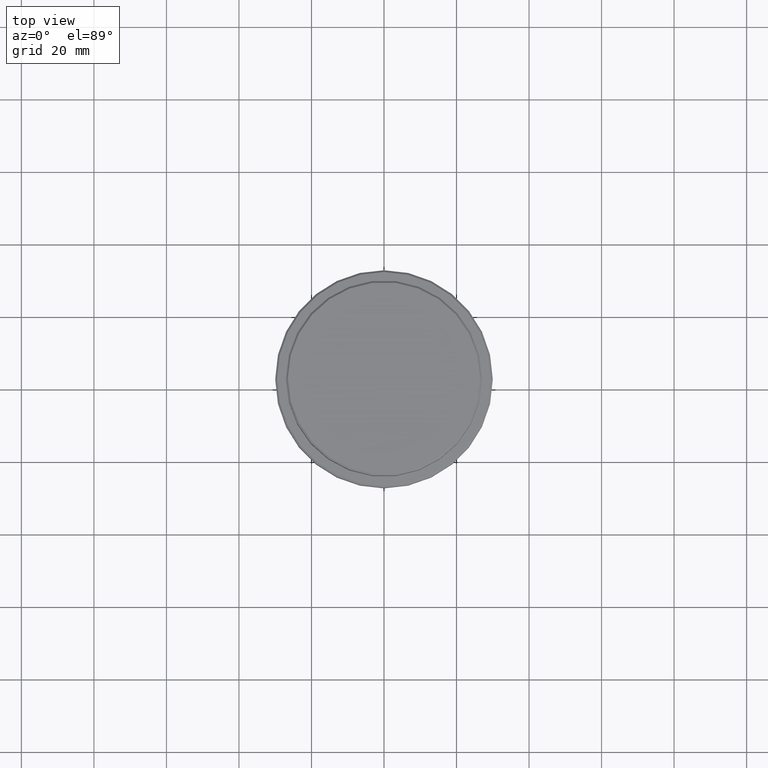
[diagram: clean part render]
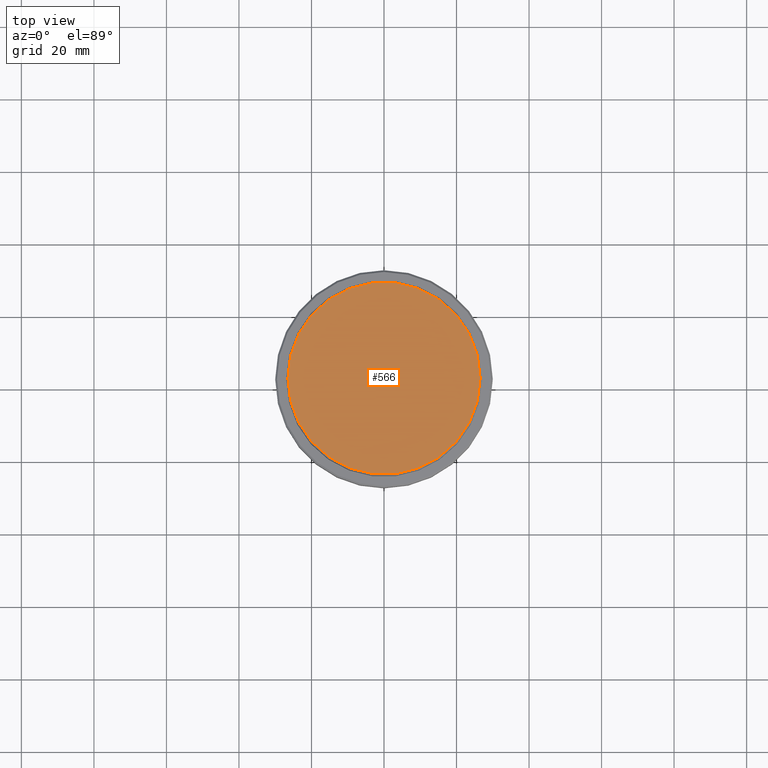
[diagram: same view with one face highlighted and labeled with its STEP entity id]
A machine part, top view. The second image highlights one B-rep face of the part: STEP entity #566.
In plain terms, the highlighted planar face has unit normal (0, -0, 1).
Its self-contained STEP definition (entity closure, byte-faithful):
#5 = FACE_OUTER_BOUND ( 'NONE', #1179, .T. ) ;
#134 = DIRECTION ( 'NONE',  ( 0.000000000000000000, -0.000000000000000000, 1.000000000000000000 ) ) ;
#223 = CIRCLE ( 'NONE', #1031, 26.50000000000002487 ) ;
#235 = CARTESIAN_POINT ( 'NONE',  ( 0.000000000000000000, 0.000000000000000000, 0.000000000000000000 ) ) ;
#254 = CARTESIAN_POINT ( 'NONE',  ( 26.50000000000002487, 3.275930187719171130E-15, 0.000000000000000000 ) ) ;
#353 = AXIS2_PLACEMENT_3D ( 'NONE', #1252, #948, #918 ) ;
#405 = VERTEX_POINT ( 'NONE', #987 ) ;
#513 = DIRECTION ( 'NONE',  ( 1.000000000000000000, 0.000000000000000000, 0.000000000000000000 ) ) ;
#548 = CIRCLE ( 'NONE', #353, 26.50000000000002487 ) ;
#566 = ADVANCED_FACE ( 'NONE', ( #5 ), #1019, .T. ) ;
#668 = EDGE_CURVE ( 'NONE', #405, #1141, #548, .T. ) ;
#868 = EDGE_CURVE ( 'NONE', #1141, #405, #223, .T. ) ;
#869 = CARTESIAN_POINT ( 'NONE',  ( 0.000000000000000000, 0.000000000000000000, 0.000000000000000000 ) ) ;
#918 = DIRECTION ( 'NONE',  ( 1.000000000000000000, 0.000000000000000000, 0.000000000000000000 ) ) ;
#948 = DIRECTION ( 'NONE',  ( -0.000000000000000000, -0.000000000000000000, 1.000000000000000000 ) ) ;
#987 = CARTESIAN_POINT ( 'NONE',  ( -26.50000000000002487, 0.000000000000000000, 0.000000000000000000 ) ) ;
#1019 = PLANE ( 'NONE',  #1197 ) ;
#1031 = AXIS2_PLACEMENT_3D ( 'NONE', #869, #1088, #513 ) ;
#1088 = DIRECTION ( 'NONE',  ( -0.000000000000000000, -0.000000000000000000, 1.000000000000000000 ) ) ;
#1109 = DIRECTION ( 'NONE',  ( 1.000000000000000000, 0.000000000000000000, 0.000000000000000000 ) ) ;
#1141 = VERTEX_POINT ( 'NONE', #254 ) ;
#1179 = EDGE_LOOP ( 'NONE', ( #1405, #1352 ) ) ;
#1197 = AXIS2_PLACEMENT_3D ( 'NONE', #235, #134, #1109 ) ;
#1252 = CARTESIAN_POINT ( 'NONE',  ( 0.000000000000000000, 0.000000000000000000, 0.000000000000000000 ) ) ;
#1352 = ORIENTED_EDGE ( 'NONE', *, *, #868, .T. ) ;
#1405 = ORIENTED_EDGE ( 'NONE', *, *, #668, .T. ) ;